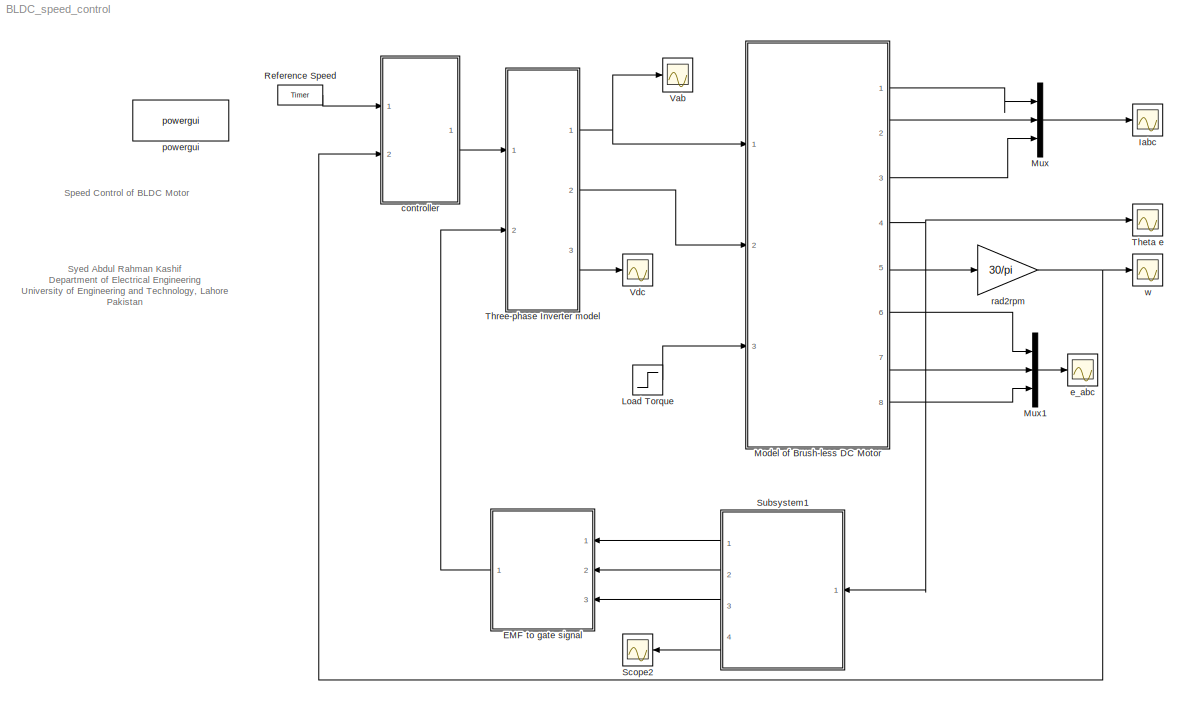
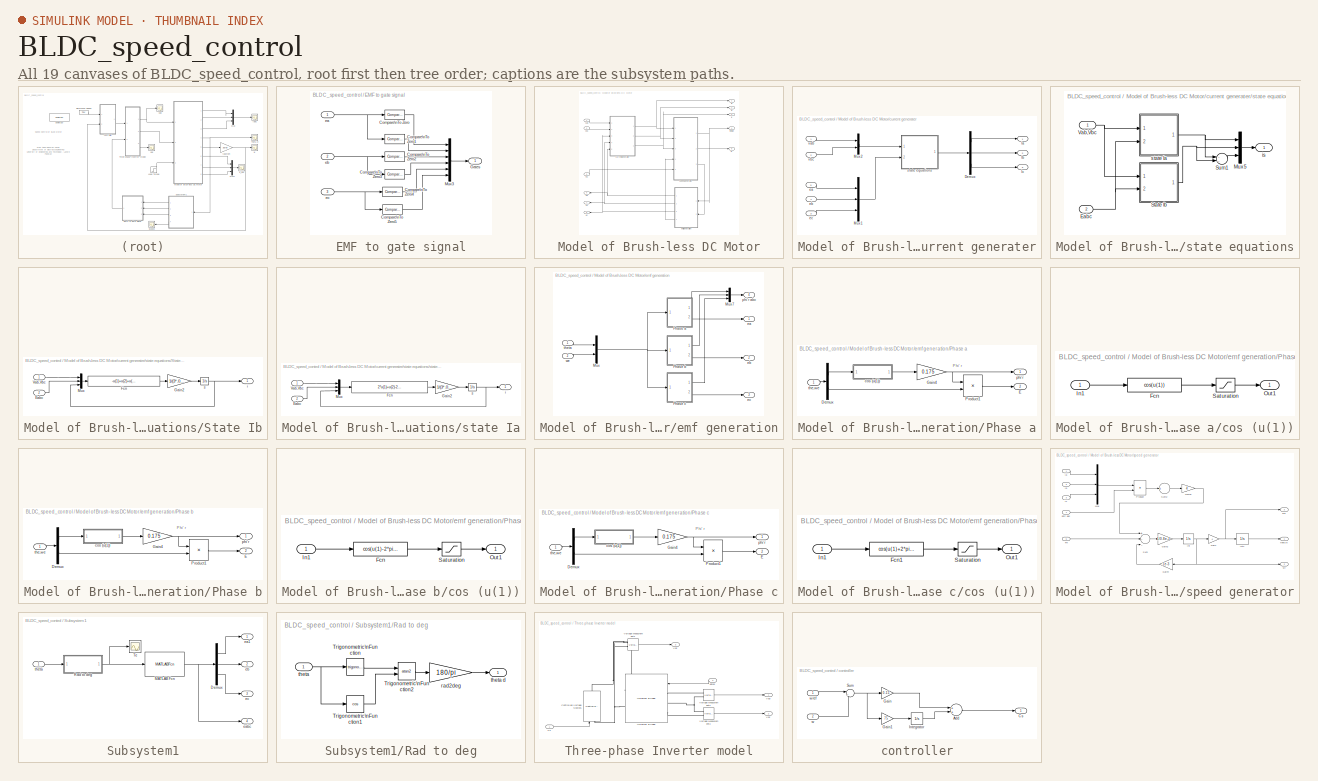
[diagram: thumbnail index - all 19 canvases of the model, root first then tree order]
MODEL BLDC_speed_control
KIND model
CONFIG InitFcn = clc;
CONFIG StopFcn = clc;
BLOCK [SubSystem] EMF to gate signal
  FunctionWithSeparateData = off
  MaskHideContents = off
  MinAlgLoopOccurrences = off
  Opaque = off
  Ports = [3, 1]
  PropExecContextOutsideSubsystem = off
  RTWSystemCode = Auto
  RequestExecContextInheritance = off
  SID = 120
BLOCK [Reference] EMF to gate signal/Compare\nTo Zero  REF=simulink/Logic and Bit\nOperations/Compare\nTo Zero
  OutDataTypeStr = boolean
  Ports = [1, 1]
  SID = 124
  SourceBlock = simulink/Logic and Bit\nOperations/Compare\nTo Zero
  SourceType = Compare To Zero
  ZeroCross = off
  relop = >
BLOCK [Reference] EMF to gate signal/Compare\nTo Zero1  REF=simulink/Logic and Bit\nOperations/Compare\nTo Zero
  OutDataTypeStr = boolean
  Ports = [1, 1]
  SID = 125
  SourceBlock = simulink/Logic and Bit\nOperations/Compare\nTo Zero
  SourceType = Compare To Zero
  ZeroCross = off
  relop = <
BLOCK [Reference] EMF to gate signal/Compare\nTo Zero2  REF=simulink/Logic and Bit\nOperations/Compare\nTo Zero
  OutDataTypeStr = boolean
  Ports = [1, 1]
  SID = 126
  SourceBlock = simulink/Logic and Bit\nOperations/Compare\nTo Zero
  SourceType = Compare To Zero
  ZeroCross = off
  relop = >
BLOCK [Reference] EMF to gate signal/Compare\nTo Zero3  REF=simulink/Logic and Bit\nOperations/Compare\nTo Zero
  OutDataTypeStr = boolean
  Ports = [1, 1]
  SID = 127
  SourceBlock = simulink/Logic and Bit\nOperations/Compare\nTo Zero
  SourceType = Compare To Zero
  ZeroCross = off
  relop = <
BLOCK [Reference] EMF to gate signal/Compare\nTo Zero4  REF=simulink/Logic and Bit\nOperations/Compare\nTo Zero
  OutDataTypeStr = boolean
  Ports = [1, 1]
  SID = 128
  SourceBlock = simulink/Logic and Bit\nOperations/Compare\nTo Zero
  SourceType = Compare To Zero
  ZeroCross = off
  relop = >
BLOCK [Reference] EMF to gate signal/Compare\nTo Zero5  REF=simulink/Logic and Bit\nOperations/Compare\nTo Zero
  OutDataTypeStr = boolean
  Ports = [1, 1]
  SID = 129
  SourceBlock = simulink/Logic and Bit\nOperations/Compare\nTo Zero
  SourceType = Compare To Zero
  ZeroCross = off
  relop = <
BLOCK [Outport] EMF to gate signal/Gates
  IconDisplay = Port number
  SID = 131
BLOCK [Mux] EMF to gate signal/Mux3
  DisplayOption = bar
  Inputs = 6
  Ports = [6, 1]
  SID = 130
BLOCK [Inport] EMF to gate signal/ea
  IconDisplay = Port number
  SID = 121
BLOCK [Inport] EMF to gate signal/eb
  IconDisplay = Port number
  Port = 2
  SID = 122
BLOCK [Inport] EMF to gate signal/ec
  IconDisplay = Port number
  Port = 3
  SID = 123
BLOCK [Scope] Iabc
  DataFormat = StructureWithTime
  Floating = off
  LimitDataPoints = off
  NumInputPorts = 1
  Ports = [1]
  SID = 1
  SampleTime = 0
  SaveName = ScopeData4
  ShowLegends = off
  YMax = 0.3
  YMin = -0.3
  ZoomMode = xonly
BLOCK [Step] Load Torque
  After = 2
  SID = 2
  SampleTime = 0
  Time = 0.2
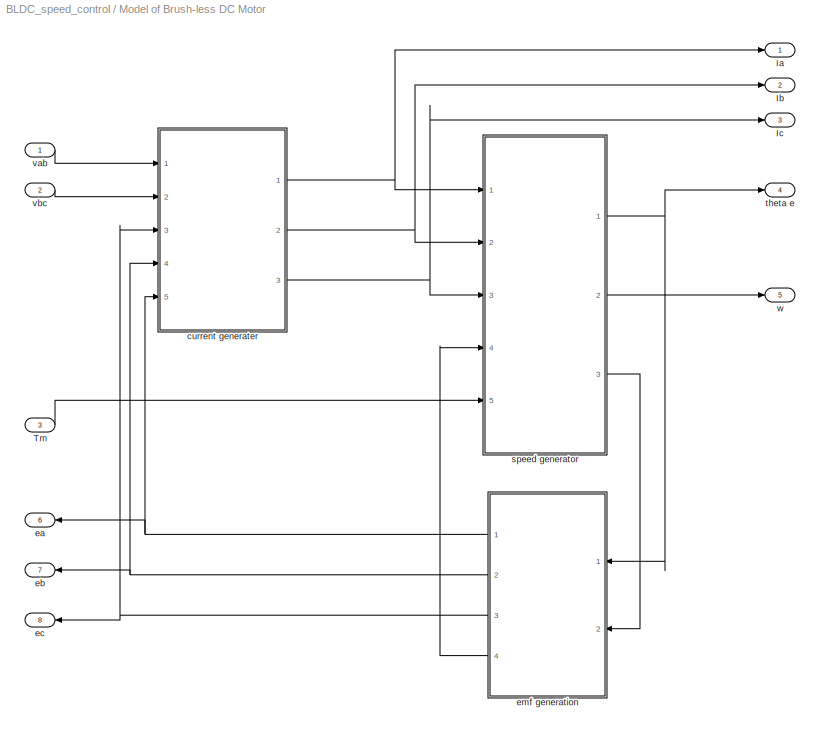
BLOCK [SubSystem] Model of Brush-less DC Motor
  FunctionWithSeparateData = off
  MaskHideContents = off
  MinAlgLoopOccurrences = off
  Opaque = off
  Ports = [3, 8]
  PropExecContextOutsideSubsystem = off
  RTWSystemCode = Auto
  RequestExecContextInheritance = off
  SID = 3
BLOCK [Outport] Model of Brush-less DC Motor/Ia
  IconDisplay = Port number
  SID = 108
BLOCK [Outport] Model of Brush-less DC Motor/Ib
  IconDisplay = Port number
  Port = 2
  SID = 109
BLOCK [Outport] Model of Brush-less DC Motor/Ic
  IconDisplay = Port number
  Port = 3
  SID = 110
BLOCK [Inport] Model of Brush-less DC Motor/Tm
  IconDisplay = Port number
  Port = 3
  SID = 6
BLOCK [SubSystem] Model of Brush-less DC Motor/current generater
  FunctionWithSeparateData = off
  MaskHideContents = off
  MinAlgLoopOccurrences = off
  Opaque = off
  Ports = [5, 3]
  PropExecContextOutsideSubsystem = off
  RTWSystemCode = Auto
  RequestExecContextInheritance = off
  SID = 7
BLOCK [Demux] Model of Brush-less DC Motor/current generater/Demux
  DisplayOption = bar
  Outputs = 3
  Ports = [1, 3]
  SID = 13
BLOCK [Outport] Model of Brush-less DC Motor/current generater/Ia
  IconDisplay = Port number
  SID = 38
BLOCK [Outport] Model of Brush-less DC Motor/current generater/Ib
  IconDisplay = Port number
  Port = 2
  SID = 39
BLOCK [Outport] Model of Brush-less DC Motor/current generater/Ic
  IconDisplay = Port number
  Port = 3
  SID = 40
BLOCK [Mux] Model of Brush-less DC Motor/current generater/Mux1
  DisplayOption = bar
  Inputs = 3
  Ports = [3, 1]
  SID = 14
BLOCK [Mux] Model of Brush-less DC Motor/current generater/Mux2
  DisplayOption = bar
  Inputs = 2
  Ports = [2, 1]
  SID = 15
BLOCK [Inport] Model of Brush-less DC Motor/current generater/ea
  IconDisplay = Port number
  Port = 5
  SID = 12
BLOCK [Inport] Model of Brush-less DC Motor/current generater/eb
  IconDisplay = Port number
  Port = 4
  SID = 11
BLOCK [Inport] Model of Brush-less DC Motor/current generater/ec
  IconDisplay = Port number
  Port = 3
  SID = 10
BLOCK [SubSystem] Model of Brush-less DC Motor/current generater/state equations
  FunctionWithSeparateData = off
  MaskHideContents = off
  MinAlgLoopOccurrences = off
  Opaque = off
  Ports = [2, 1]
  PropExecContextOutsideSubsystem = off
  RTWSystemCode = Auto
  RequestExecContextInheritance = off
  SID = 16
BLOCK [Inport] Model of Brush-less DC Motor/current generater/state equations/Eabc
  IconDisplay = Port number
  Port = 2
  SID = 18
BLOCK [Mux] Model of Brush-less DC Motor/current generater/state equations/Mux5
  DisplayOption = bar
  Inputs = 3
  Ports = [3, 1]
  SID = 19
BLOCK [SubSystem] Model of Brush-less DC Motor/current generater/state equations/State Ib
  FunctionWithSeparateData = off
  MaskHideContents = off
  MinAlgLoopOccurrences = off
  Opaque = off
  Ports = [2, 1]
  PropExecContextOutsideSubsystem = off
  RTWSystemCode = Auto
  RequestExecContextInheritance = off
  SID = 20
BLOCK [Inport] Model of Brush-less DC Motor/current generater/state equations/State Ib/Eabc
  IconDisplay = Port number
  Port = 2
  SID = 22
BLOCK [Fcn] Model of Brush-less DC Motor/current generater/state equations/State Ib/Fcn
  Expr = -u(1)+u(2)+u(3)-2*u(4)+u(5)-3*2.8750*u(6)
  SID = 23
BLOCK [Gain] Model of Brush-less DC Motor/current generater/state equations/State Ib/Gain2
  Gain = 1/(3*.0085)
  SID = 24
BLOCK [Mux] Model of Brush-less DC Motor/current generater/state equations/State Ib/Mux
  DisplayOption = bar
  Inputs = 3
  Ports = [3, 1]
  SID = 25
BLOCK [Inport] Model of Brush-less DC Motor/current generater/state equations/State Ib/Vab,Vbc
  IconDisplay = Port number
  SID = 21
BLOCK [Outport] Model of Brush-less DC Motor/current generater/state equations/State Ib/i
  IconDisplay = Port number
  SID = 27
BLOCK [Integrator] Model of Brush-less DC Motor/current generater/state equations/State Ib/s 
  Ports = [1, 1]
  SID = 26
BLOCK [Sum] Model of Brush-less DC Motor/current generater/state equations/Sum1
  InputSameDT = off
  Inputs = --
  OutDataTypeStr = Inherit: Inherit via internal rule
  Ports = [2, 1]
  SID = 28
BLOCK [Inport] Model of Brush-less DC Motor/current generater/state equations/Vab,Vbc
  IconDisplay = Port number
  SID = 17
BLOCK [Outport] Model of Brush-less DC Motor/current generater/state equations/is
  IconDisplay = Port number
  SID = 37
BLOCK [SubSystem] Model of Brush-less DC Motor/current generater/state equations/state Ia
  FunctionWithSeparateData = off
  MaskHideContents = off
  MinAlgLoopOccurrences = off
  Opaque = off
  Ports = [2, 1]
  PropExecContextOutsideSubsystem = off
  RTWSystemCode = Auto
  RequestExecContextInheritance = off
  SID = 29
BLOCK [Inport] Model of Brush-less DC Motor/current generater/state equations/state Ia/Eabc
  IconDisplay = Port number
  Port = 2
  SID = 31
BLOCK [Fcn] Model of Brush-less DC Motor/current generater/state equations/state Ia/Fcn
  Expr = 2*u(1)+u(2)-2*u(3)+u(4)+u(5)-3*2.8750*u(6)
  SID = 32
BLOCK [Gain] Model of Brush-less DC Motor/current generater/state equations/state Ia/Gain2
  Gain = 1/(3*.0085)
  SID = 33
BLOCK [Mux] Model of Brush-less DC Motor/current generater/state equations/state Ia/Mux
  DisplayOption = bar
  Inputs = 3
  Ports = [3, 1]
  SID = 34
BLOCK [Inport] Model of Brush-less DC Motor/current generater/state equations/state Ia/Vab,Vbc
  IconDisplay = Port number
  SID = 30
BLOCK [Outport] Model of Brush-less DC Motor/current generater/state equations/state Ia/i
  IconDisplay = Port number
  SID = 36
BLOCK [Integrator] Model of Brush-less DC Motor/current generater/state equations/state Ia/s 
  Ports = [1, 1]
  SID = 35
BLOCK [Inport] Model of Brush-less DC Motor/current generater/vab
  IconDisplay = Port number
  SID = 8
BLOCK [Inport] Model of Brush-less DC Motor/current generater/vbc
  IconDisplay = Port number
  Port = 2
  SID = 9
BLOCK [Outport] Model of Brush-less DC Motor/ea
  IconDisplay = Port number
  Port = 6
  SID = 113
BLOCK [Outport] Model of Brush-less DC Motor/eb
  IconDisplay = Port number
  Port = 7
  SID = 114
BLOCK [Outport] Model of Brush-less DC Motor/ec
  IconDisplay = Port number
  Port = 8
  SID = 115
BLOCK [SubSystem] Model of Brush-less DC Motor/emf generation
  FunctionWithSeparateData = off
  MaskHideContents = off
  MinAlgLoopOccurrences = off
  Opaque = off
  Ports = [2, 4]
  PropExecContextOutsideSubsystem = off
  RTWSystemCode = Auto
  RequestExecContextInheritance = off
  SID = 41
BLOCK [Mux] Model of Brush-less DC Motor/emf generation/Mux
  DisplayOption = bar
  Inputs = 2
  Ports = [2, 1]
  SID = 44
BLOCK [Mux] Model of Brush-less DC Motor/emf generation/Mux7
  DisplayOption = bar
  Inputs = 3
  Ports = [3, 1]
  SID = 45
BLOCK [SubSystem] Model of Brush-less DC Motor/emf generation/Phase a
  FunctionWithSeparateData = off
  MaskHideContents = off
  MinAlgLoopOccurrences = off
  Opaque = off
  Ports = [1, 2]
  PropExecContextOutsideSubsystem = off
  RTWSystemCode = Auto
  RequestExecContextInheritance = off
  SID = 46
BLOCK [Demux] Model of Brush-less DC Motor/emf generation/Phase a/Demux
  Outputs = 2
  Ports = [1, 2]
  SID = 48
BLOCK [Outport] Model of Brush-less DC Motor/emf generation/Phase a/E
  IconDisplay = Port number
  Port = 2
  SID = 57
BLOCK [Gain] Model of Brush-less DC Motor/emf generation/Phase a/Gain4
  Gain = 0.175
  SID = 49
BLOCK [Product] Model of Brush-less DC Motor/emf generation/Phase a/Product1
  InputSameDT = off
  Ports = [2, 1]
  RndMeth = Floor
  SID = 50
BLOCK [SubSystem] Model of Brush-less DC Motor/emf generation/Phase a/cos (u(1))
  FunctionWithSeparateData = off
  MaskHideContents = off
  MinAlgLoopOccurrences = off
  Opaque = off
  Ports = [1, 1]
  PropExecContextOutsideSubsystem = off
  RTWSystemCode = Auto
  RequestExecContextInheritance = off
  SID = 51
BLOCK [Fcn] Model of Brush-less DC Motor/emf generation/Phase a/cos (u(1))/Fcn
  Expr = cos(u(1))
  SID = 53
BLOCK [Inport] Model of Brush-less DC Motor/emf generation/Phase a/cos (u(1))/In1
  IconDisplay = Port number
  SID = 52
BLOCK [Outport] Model of Brush-less DC Motor/emf generation/Phase a/cos (u(1))/Out1
  IconDisplay = Port number
  SID = 55
BLOCK [Saturate] Model of Brush-less DC Motor/emf generation/Phase a/cos (u(1))/Saturation
  InputPortMap = u0
  LowerLimit = -0.8
  Ports = [1, 1]
  SID = 54
  UpperLimit = 0.8
BLOCK [Outport] Model of Brush-less DC Motor/emf generation/Phase a/phi'r
  IconDisplay = Port number
  SID = 56
BLOCK [Inport] Model of Brush-less DC Motor/emf generation/Phase a/the,we
  IconDisplay = Port number
  SID = 47
BLOCK [SubSystem] Model of Brush-less DC Motor/emf generation/Phase b
  FunctionWithSeparateData = off
  MaskHideContents = off
  MinAlgLoopOccurrences = off
  Opaque = off
  Ports = [1, 2]
  PropExecContextOutsideSubsystem = off
  RTWSystemCode = Auto
  RequestExecContextInheritance = off
  SID = 59
BLOCK [Demux] Model of Brush-less DC Motor/emf generation/Phase b/Demux
  Outputs = 2
  Ports = [1, 2]
  SID = 61
BLOCK [Outport] Model of Brush-less DC Motor/emf generation/Phase b/E
  IconDisplay = Port number
  Port = 2
  SID = 70
BLOCK [Gain] Model of Brush-less DC Motor/emf generation/Phase b/Gain4
  Gain = 0.175
  SID = 62
BLOCK [Product] Model of Brush-less DC Motor/emf generation/Phase b/Product1
  InputSameDT = off
  Ports = [2, 1]
  RndMeth = Floor
  SID = 63
BLOCK [SubSystem] Model of Brush-less DC Motor/emf generation/Phase b/cos (u(1))
  FunctionWithSeparateData = off
  MaskHideContents = off
  MinAlgLoopOccurrences = off
  Opaque = off
  Ports = [1, 1]
  PropExecContextOutsideSubsystem = off
  RTWSystemCode = Auto
  RequestExecContextInheritance = off
  SID = 64
BLOCK [Fcn] Model of Brush-less DC Motor/emf generation/Phase b/cos (u(1))/Fcn
  Expr = cos(u(1)-2*pi/3)
  SID = 66
BLOCK [Inport] Model of Brush-less DC Motor/emf generation/Phase b/cos (u(1))/In1
  IconDisplay = Port number
  SID = 65
BLOCK [Outport] Model of Brush-less DC Motor/emf generation/Phase b/cos (u(1))/Out1
  IconDisplay = Port number
  SID = 68
BLOCK [Saturate] Model of Brush-less DC Motor/emf generation/Phase b/cos (u(1))/Saturation
  InputPortMap = u0
  LowerLimit = -0.8
  Ports = [1, 1]
  SID = 67
  UpperLimit = 0.8
BLOCK [Outport] Model of Brush-less DC Motor/emf generation/Phase b/phi'r
  IconDisplay = Port number
  SID = 69
BLOCK [Inport] Model of Brush-less DC Motor/emf generation/Phase b/the,we
  IconDisplay = Port number
  SID = 60
BLOCK [SubSystem] Model of Brush-less DC Motor/emf generation/Phase c
  FunctionWithSeparateData = off
  MaskHideContents = off
  MinAlgLoopOccurrences = off
  Opaque = off
  Ports = [1, 2]
  PropExecContextOutsideSubsystem = off
  RTWSystemCode = Auto
  RequestExecContextInheritance = off
  SID = 72
BLOCK [Demux] Model of Brush-less DC Motor/emf generation/Phase c/Demux
  Outputs = 2
  Ports = [1, 2]
  SID = 74
BLOCK [Outport] Model of Brush-less DC Motor/emf generation/Phase c/E
  IconDisplay = Port number
  Port = 2
  SID = 83
BLOCK [Gain] Model of Brush-less DC Motor/emf generation/Phase c/Gain4
  Gain = 0.175
  SID = 75
BLOCK [Product] Model of Brush-less DC Motor/emf generation/Phase c/Product1
  InputSameDT = off
  Ports = [2, 1]
  RndMeth = Floor
  SID = 76
BLOCK [SubSystem] Model of Brush-less DC Motor/emf generation/Phase c/cos (u(1))
  FunctionWithSeparateData = off
  MaskHideContents = off
  MinAlgLoopOccurrences = off
  Opaque = off
  Ports = [1, 1]
  PropExecContextOutsideSubsystem = off
  RTWSystemCode = Auto
  RequestExecContextInheritance = off
  SID = 77
BLOCK [Fcn] Model of Brush-less DC Motor/emf generation/Phase c/cos (u(1))/Fcn1
  Expr = cos(u(1)+2*pi/3)
  SID = 79
BLOCK [Inport] Model of Brush-less DC Motor/emf generation/Phase c/cos (u(1))/In1
  IconDisplay = Port number
  SID = 78
BLOCK [Outport] Model of Brush-less DC Motor/emf generation/Phase c/cos (u(1))/Out1
  IconDisplay = Port number
  SID = 81
BLOCK [Saturate] Model of Brush-less DC Motor/emf generation/Phase c/cos (u(1))/Saturation
  InputPortMap = u0
  LowerLimit = -0.8
  Ports = [1, 1]
  SID = 80
  UpperLimit = 0.8
BLOCK [Outport] Model of Brush-less DC Motor/emf generation/Phase c/phi'r
  IconDisplay = Port number
  SID = 82
BLOCK [Inport] Model of Brush-less DC Motor/emf generation/Phase c/the,we
  IconDisplay = Port number
  SID = 73
BLOCK [Outport] Model of Brush-less DC Motor/emf generation/ea
  IconDisplay = Port number
  SID = 85
BLOCK [Outport] Model of Brush-less DC Motor/emf generation/eb
  IconDisplay = Port number
  Port = 2
  SID = 86
BLOCK [Outport] Model of Brush-less DC Motor/emf generation/ec
  IconDisplay = Port number
  Port = 3
  SID = 87
BLOCK [Outport] Model of Brush-less DC Motor/emf generation/phi'r abc
  IconDisplay = Port number
  Port = 4
  SID = 88
BLOCK [Inport] Model of Brush-less DC Motor/emf generation/theta
  IconDisplay = Port number
  SID = 42
BLOCK [Inport] Model of Brush-less DC Motor/emf generation/we
  IconDisplay = Port number
  Port = 2
  SID = 43
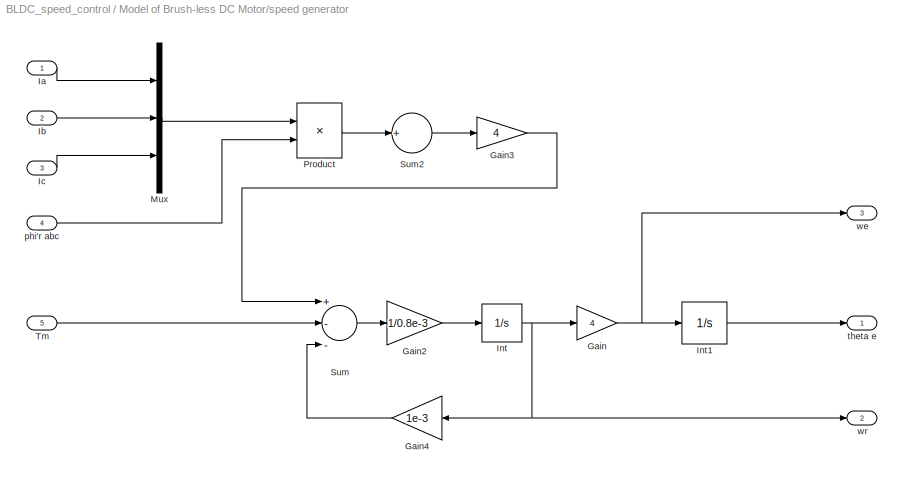
BLOCK [SubSystem] Model of Brush-less DC Motor/speed generator
  FunctionWithSeparateData = off
  MaskHideContents = off
  MinAlgLoopOccurrences = off
  Opaque = off
  Ports = [5, 3]
  PropExecContextOutsideSubsystem = off
  RTWSystemCode = Auto
  RequestExecContextInheritance = off
  SID = 89
BLOCK [Gain] Model of Brush-less DC Motor/speed generator/Gain
  Gain = 4
  SID = 95
BLOCK [Gain] Model of Brush-less DC Motor/speed generator/Gain2
  Gain = 1/0.8e-3
  SID = 96
BLOCK [Gain] Model of Brush-less DC Motor/speed generator/Gain3
  Gain = 4
  SID = 97
BLOCK [Gain] Model of Brush-less DC Motor/speed generator/Gain4
  Gain = 1e-3
  SID = 98
BLOCK [Inport] Model of Brush-less DC Motor/speed generator/Ia
  IconDisplay = Port number
  SID = 90
BLOCK [Inport] Model of Brush-less DC Motor/speed generator/Ib
  IconDisplay = Port number
  Port = 2
  SID = 91
BLOCK [Inport] Model of Brush-less DC Motor/speed generator/Ic
  IconDisplay = Port number
  Port = 3
  SID = 92
BLOCK [Integrator] Model of Brush-less DC Motor/speed generator/Int
  Ports = [1, 1]
  SID = 99
BLOCK [Integrator] Model of Brush-less DC Motor/speed generator/Int1
  Ports = [1, 1]
  SID = 100
BLOCK [Mux] Model of Brush-less DC Motor/speed generator/Mux
  DisplayOption = bar
  Inputs = 3
  Ports = [3, 1]
  SID = 101
BLOCK [Product] Model of Brush-less DC Motor/speed generator/Product
  InputSameDT = off
  Ports = [2, 1]
  RndMeth = Floor
  SID = 102
BLOCK [Sum] Model of Brush-less DC Motor/speed generator/Sum
  Inputs = +--
  Ports = [3, 1]
  SID = 103
BLOCK [Sum] Model of Brush-less DC Motor/speed generator/Sum2
  IconShape = round
  InputSameDT = off
  Inputs = +
  OutDataTypeStr = Inherit: Inherit via internal rule
  Ports = [1, 1]
  SID = 104
BLOCK [Inport] Model of Brush-less DC Motor/speed generator/Tm
  IconDisplay = Port number
  Port = 5
  SID = 94
BLOCK [Inport] Model of Brush-less DC Motor/speed generator/phi'r abc
  IconDisplay = Port number
  Port = 4
  SID = 93
BLOCK [Outport] Model of Brush-less DC Motor/speed generator/theta e
  IconDisplay = Port number
  SID = 105
BLOCK [Outport] Model of Brush-less DC Motor/speed generator/we
  IconDisplay = Port number
  Port = 3
  SID = 107
BLOCK [Outport] Model of Brush-less DC Motor/speed generator/wr
  IconDisplay = Port number
  Port = 2
  SID = 106
BLOCK [Outport] Model of Brush-less DC Motor/theta e
  IconDisplay = Port number
  Port = 4
  SID = 111
BLOCK [Inport] Model of Brush-less DC Motor/vab
  IconDisplay = Port number
  SID = 4
BLOCK [Inport] Model of Brush-less DC Motor/vbc
  IconDisplay = Port number
  Port = 2
  SID = 5
BLOCK [Outport] Model of Brush-less DC Motor/w
  IconDisplay = Port number
  Port = 5
  SID = 112
BLOCK [Mux] Mux
  DisplayOption = bar
  Inputs = 3
  Ports = [3, 1]
  SID = 116
BLOCK [Mux] Mux1
  DisplayOption = bar
  Inputs = 3
  Ports = [3, 1]
  SID = 117
BLOCK [Reference] Reference Speed  REF=powerlib_extras/Control \nBlocks/Timer
  Ports = [0, 1]
  SID = 119
  SourceBlock = powerlib_extras/Control \nBlocks/Timer
  SourceType = Timer
  e = [2000 1000]
  t = [0 0.5]
BLOCK [Scope] Scope2
  DataFormat = StructureWithTime
  Floating = off
  NumInputPorts = 1
  Ports = [1]
  SID = 118
  SampleTime = 0
  SaveName = ScopeData2
  ShowLegends = off
  TimeRange = 0.2
  YMax = 2
  YMin = -2
  ZoomMode = xonly
BLOCK [SubSystem] Subsystem1
  FunctionWithSeparateData = off
  MaskHideContents = off
  MinAlgLoopOccurrences = off
  Opaque = off
  Ports = [1, 4]
  PropExecContextOutsideSubsystem = off
  RTWSystemCode = Auto
  RequestExecContextInheritance = off
  SID = 132
BLOCK [Demux] Subsystem1/Demux
  DisplayOption = bar
  Outputs = 3
  Ports = [1, 3]
  SID = 134
BLOCK [MATLABFcn] Subsystem1/MATLAB Fcn
  MATLABFcn = emfg(u)
  OutputDimensions = 3
  Ports = [1, 1]
  SID = 135
BLOCK [SubSystem] Subsystem1/Rad to deg
  FunctionWithSeparateData = off
  MaskHideContents = off
  MinAlgLoopOccurrences = off
  Opaque = off
  Ports = [1, 1]
  PropExecContextOutsideSubsystem = off
  RTWSystemCode = Auto
  RequestExecContextInheritance = off
  SID = 136
BLOCK [Trigonometry] Subsystem1/Rad to deg/Trigonometric\nFunction
  Ports = [1, 1]
  SID = 138
BLOCK [Trigonometry] Subsystem1/Rad to deg/Trigonometric\nFunction1
  Operator = cos
  Ports = [1, 1]
  SID = 139
BLOCK [Trigonometry] Subsystem1/Rad to deg/Trigonometric\nFunction2
  Operator = atan2
  Ports = [2, 1]
  SID = 140
BLOCK [Gain] Subsystem1/Rad to deg/rad2deg
  Gain = 180/pi
  SID = 141
BLOCK [Inport] Subsystem1/Rad to deg/theta
  IconDisplay = Port number
  SID = 137
BLOCK [Outport] Subsystem1/Rad to deg/theta d
  IconDisplay = Port number
  SID = 142
BLOCK [Scope] Subsystem1/Te
  DataFormat = StructureWithTime
  Floating = off
  NumInputPorts = 1
  Ports = [1]
  SID = 143
  SampleTime = 0
  SaveName = ScopeData12
  ShowLegends = off
  TimeRange = 0.0001172995862488424
  YMax = 200
  YMin = -200
  ZoomMode = xonly
BLOCK [Outport] Subsystem1/ea1
  IconDisplay = Port number
  SID = 144
BLOCK [Outport] Subsystem1/eabc
  IconDisplay = Port number
  Port = 4
  SID = 147
BLOCK [Outport] Subsystem1/eb
  IconDisplay = Port number
  Port = 2
  SID = 145
BLOCK [Outport] Subsystem1/ec
  IconDisplay = Port number
  Port = 3
  SID = 146
BLOCK [Inport] Subsystem1/theta
  IconDisplay = Port number
  SID = 133
BLOCK [Scope] Theta e
  DataFormat = StructureWithTime
  Floating = off
  NumInputPorts = 1
  Ports = [1]
  SID = 148
  SampleTime = 0
  ShowLegends = off
  YMax = 1.00067
  YMin = 1.00059
BLOCK [SubSystem] Three-phase Inverter model
  FunctionWithSeparateData = off
  MaskHideContents = off
  MinAlgLoopOccurrences = off
  Opaque = off
  Ports = [2, 3]
  PropExecContextOutsideSubsystem = off
  RTWSystemCode = Auto
  RequestExecContextInheritance = off
  SID = 163
BLOCK [Reference] Three-phase Inverter model/Controlled Voltage Source1  REF=powerlib/Electrical\nSources/Controlled Voltage Source
  Amplitude = 500
  Frequency = 0
  Initialize = on
  Measurements = None
  Phase = 0
  Ports = [1, 0, 0, 0, 0, 1, 1]
  SID = 166
  SourceBlock = powerlib/Electrical\nSources/Controlled Voltage Source
  SourceType = Controlled Voltage Source
  Source_Type = AC
BLOCK [Inport] Three-phase Inverter model/Cs
  IconDisplay = Port number
  SID = 164
BLOCK [Reference] Three-phase Inverter model/Universal Bridge  REF=powerlib/Power\nElectronics/Universal Bridge
  Arms = 3
  Device = MOSFET / Diodes
  ForwardVoltage = 0
  ForwardVoltages = [  0  0  ]
  GTOparameters = [ 10e-6 , 20e-6 ]
  IGBTparameters = [ 1e-6 , 2e-6 ]
  Lon = 0
  Measurements = None
  Measurements_2 = None
  Ports = [1, 0, 0, 0, 0, 3, 2]
  Ron = 1e-3
  SID = 167
  SnubberCapacitance = 1e-6
  SnubberResistance = 5000
  SourceBlock = powerlib/Power\nElectronics/Universal Bridge
  SourceType = Universal Bridge
  converterType = Rectifier
BLOCK [Outport] Three-phase Inverter model/Vab
  IconDisplay = Port number
  SID = 171
BLOCK [Outport] Three-phase Inverter model/Vbc
  IconDisplay = Port number
  Port = 2
  SID = 172
BLOCK [Outport] Three-phase Inverter model/Vdc
  IconDisplay = Port number
  Port = 3
  SID = 173
BLOCK [Reference] Three-phase Inverter model/Voltage Measurement1  REF=powerlib/Measurements/Voltage Measurement
  OutputType = Complex
  PSBequivalent = 0
  PhasorSimulation = off
  Ports = [0, 1, 0, 0, 0, 2]
  SID = 168
  SourceBlock = powerlib/Measurements/Voltage Measurement
  SourceType = Voltage Measurement
BLOCK [Reference] Three-phase Inverter model/Voltage Measurement2  REF=powerlib/Measurements/Voltage Measurement
  OutputType = Complex
  PSBequivalent = 0
  PhasorSimulation = off
  Ports = [0, 1, 0, 0, 0, 2]
  SID = 169
  SourceBlock = powerlib/Measurements/Voltage Measurement
  SourceType = Voltage Measurement
BLOCK [Reference] Three-phase Inverter model/Voltage Measurement3  REF=powerlib/Measurements/Voltage Measurement
  OutputType = Complex
  PSBequivalent = 0
  PhasorSimulation = off
  Ports = [0, 1, 0, 0, 0, 2]
  SID = 170
  SourceBlock = powerlib/Measurements/Voltage Measurement
  SourceType = Voltage Measurement
BLOCK [Inport] Three-phase Inverter model/gates
  IconDisplay = Port number
  Port = 2
  SID = 165
BLOCK [Scope] Vab
  DataFormat = StructureWithTime
  Floating = off
  LimitDataPoints = off
  NumInputPorts = 1
  Ports = [1]
  SID = 149
  SampleTime = 0
  SaveName = ScopeData3
  ShowLegends = off
  TimeRange = 0.2
  YMax = 10000
  YMin = -10000
  ZoomMode = xonly
BLOCK [Scope] Vdc
  DataFormat = StructureWithTime
  Floating = off
  NumInputPorts = 1
  Ports = [1]
  SID = 150
  SampleTime = 0
  SaveName = ScopeData5
  ShowLegends = off
BLOCK [SubSystem] controller
  FunctionWithSeparateData = off
  MaskHideContents = off
  MinAlgLoopOccurrences = off
  Opaque = off
  Ports = [2, 1]
  PropExecContextOutsideSubsystem = off
  RTWSystemCode = Auto
  RequestExecContextInheritance = off
  SID = 151
BLOCK [Sum] controller/Add
  InputSameDT = off
  OutDataTypeStr = Inherit: Inherit via internal rule
  Ports = [2, 1]
  SID = 154
  SaturateOnIntegerOverflow = off
BLOCK [Outport] controller/Cs
  IconDisplay = Port number
  SID = 159
BLOCK [Gain] controller/Gain
  Gain = 0.15
  OutDataTypeStr = Inherit: Inherit via internal rule
  ParamDataTypeStr = Inherit: Inherit via internal rule
  SID = 155
  SaturateOnIntegerOverflow = off
BLOCK [Gain] controller/Gain1
  Gain = 75
  OutDataTypeStr = Inherit: Inherit via internal rule
  ParamDataTypeStr = Inherit: Inherit via internal rule
  SID = 156
  SaturateOnIntegerOverflow = off
BLOCK [Integrator] controller/Integrator
  Ports = [1, 1]
  SID = 157
BLOCK [Sum] controller/Sum
  IconShape = round
  InputSameDT = off
  Inputs = |+-
  OutDataTypeStr = Inherit: Inherit via internal rule
  Ports = [2, 1]
  SID = 158
  SaturateOnIntegerOverflow = off
BLOCK [Inport] controller/w
  IconDisplay = Port number
  Port = 2
  SID = 153
BLOCK [Inport] controller/wref
  IconDisplay = Port number
  SID = 152
BLOCK [Scope] e_abc
  DataFormat = StructureWithTime
  Floating = off
  LimitDataPoints = off
  NumInputPorts = 1
  Ports = [1]
  SID = 160
  SampleTime = 0
  SaveName = ScopeData6
  ShowLegends = off
  TimeRange = 0.0001172995862488424
  YMax = 150
  YMin = -150
  ZoomMode = xonly
BLOCK [Reference] powergui  REF=powerlib/powergui
  DisableRonSwitches = off
  DisableSnubberDevices = off
  DisableVfSwitches = off
  DisplayEquations = off
  DisplayStyle = 1
  EnableUseOfTLC = off
  ErrMax = 1e-4
  Frange = [0:2:500]
  FreqAxis = off
  FunctionMessages = off
  HookPort = off
  Interpol = off
  Iterations = 50
  MaxFrequency = 1000
  Pbase = 100e6
  Ports = []
  Priority = 2
  ResistiveCurrentMeasurement = off
  RestoreLinks = warning
  RmsSteady = 1
  SID = 161
  SPID = off
  SampleTime = Ts
  ShowGrid = off
  SolverType = Tustin
  SourceBlock = powerlib/powergui
  SourceType = PSB option menu block
  StartTime = 0.0
  SwTol = 0
  Ts = 0
  UnitsV = kV
  UnitsW = MW
  UserData = DataTag0
  UserDataPersistent = on
  Xlog = on
  Ylog = off
  ZoomFFT = on
  cycles = 1
  display = off
  echomessages = off
  frequency = 60
  frequencyindice = 0
  frequencyindicesteady = 1
  fundamental = 60
  methode = off
  save = off
  variable = ZData
  x0status = blocks
BLOCK [Gain] rad2rpm
  Gain = 30/pi
  OutDataTypeStr = Inherit: Inherit via internal rule
  ParamDataTypeStr = Inherit: Inherit via internal rule
  SID = 162
  SaturateOnIntegerOverflow = off
BLOCK [Scope] w
  DataFormat = StructureWithTime
  Floating = off
  LimitDataPoints = off
  NumInputPorts = 1
  Ports = [1]
  SID = 174
  SampleTime = 0
  SaveName = ScopeData1
  ShowLegends = off
  TimeRange = 0.4
  YMax = 2500
  YMin = 0
  ZoomMode = xonly
ANNOTATION (root): Speed Control of BLDC Motor
ANNOTATION (root): Syed Abdul Rahman Kashif\nDepartment of Electrical Engineering\nUniversity of Engineering and Technology, Lahore\nPakistan
ANNOTATION Model of Brush-less DC Motor/emf generation/Phase a: Phi' r
ANNOTATION Model of Brush-less DC Motor/emf generation/Phase b: Phi' r
ANNOTATION Model of Brush-less DC Motor/emf generation/Phase c: Phi' r
LINE EMF to gate signal/Compare\nTo Zero1:1 -> EMF to gate signal/Mux3:2
LINE EMF to gate signal/Compare\nTo Zero2:1 -> EMF to gate signal/Mux3:3
LINE EMF to gate signal/Compare\nTo Zero3:1 -> EMF to gate signal/Mux3:4
LINE EMF to gate signal/Compare\nTo Zero4:1 -> EMF to gate signal/Mux3:5
LINE EMF to gate signal/Compare\nTo Zero5:1 -> EMF to gate signal/Mux3:6
LINE EMF to gate signal/Compare\nTo Zero:1 -> EMF to gate signal/Mux3:1
LINE EMF to gate signal/Mux3:1 -> EMF to gate signal/Gates:1
NET EMF to gate signal/ea:1 -> EMF to gate signal/Compare\nTo Zero1:1, EMF to gate signal/Compare\nTo Zero:1
NET EMF to gate signal/eb:1 -> EMF to gate signal/Compare\nTo Zero2:1, EMF to gate signal/Compare\nTo Zero3:1
NET EMF to gate signal/ec:1 -> EMF to gate signal/Compare\nTo Zero4:1, EMF to gate signal/Compare\nTo Zero5:1
LINE EMF to gate signal:1 -> Three-phase Inverter model:2
LINE Load Torque:1 -> Model of Brush-less DC Motor:3
LINE Model of Brush-less DC Motor/Tm:1 -> Model of Brush-less DC Motor/speed generator:5
LINE Model of Brush-less DC Motor/current generater/Demux:1 -> Model of Brush-less DC Motor/current generater/Ia:1
LINE Model of Brush-less DC Motor/current generater/Demux:2 -> Model of Brush-less DC Motor/current generater/Ib:1
LINE Model of Brush-less DC Motor/current generater/Demux:3 -> Model of Brush-less DC Motor/current generater/Ic:1
LINE Model of Brush-less DC Motor/current generater/Mux1:1 -> Model of Brush-less DC Motor/current generater/state equations:2
LINE Model of Brush-less DC Motor/current generater/Mux2:1 -> Model of Brush-less DC Motor/current generater/state equations:1
LINE Model of Brush-less DC Motor/current generater/ea:1 -> Model of Brush-less DC Motor/current generater/Mux1:1
LINE Model of Brush-less DC Motor/current generater/eb:1 -> Model of Brush-less DC Motor/current generater/Mux1:2
LINE Model of Brush-less DC Motor/current generater/ec:1 -> Model of Brush-less DC Motor/current generater/Mux1:3
NET Model of Brush-less DC Motor/current generater/state equations/Eabc:1 -> Model of Brush-less DC Motor/current generater/state equations/State Ib:2, Model of Brush-less DC Motor/current generater/state equations/state Ia:2
LINE Model of Brush-less DC Motor/current generater/state equations/Mux5:1 -> Model of Brush-less DC Motor/current generater/state equations/is:1
LINE Model of Brush-less DC Motor/current generater/state equations/State Ib/Eabc:1 -> Model of Brush-less DC Motor/current generater/state equations/State Ib/Mux:2
LINE Model of Brush-less DC Motor/current generater/state equations/State Ib/Fcn:1 -> Model of Brush-less DC Motor/current generater/state equations/State Ib/Gain2:1
LINE Model of Brush-less DC Motor/current generater/state equations/State Ib/Gain2:1 -> Model of Brush-less DC Motor/current generater/state equations/State Ib/s :1
LINE Model of Brush-less DC Motor/current generater/state equations/State Ib/Mux:1 -> Model of Brush-less DC Motor/current generater/state equations/State Ib/Fcn:1
LINE Model of Brush-less DC Motor/current generater/state equations/State Ib/Vab,Vbc:1 -> Model of Brush-less DC Motor/current generater/state equations/State Ib/Mux:1
NET Model of Brush-less DC Motor/current generater/state equations/State Ib/s :1 -> Model of Brush-less DC Motor/current generater/state equations/State Ib/Mux:3, Model of Brush-less DC Motor/current generater/state equations/State Ib/i:1
NET Model of Brush-less DC Motor/current generater/state equations/State Ib:1 -> Model of Brush-less DC Motor/current generater/state equations/Mux5:2, Model of Brush-less DC Motor/current generater/state equations/Sum1:2
LINE Model of Brush-less DC Motor/current generater/state equations/Sum1:1 -> Model of Brush-less DC Motor/current generater/state equations/Mux5:3
NET Model of Brush-less DC Motor/current generater/state equations/Vab,Vbc:1 -> Model of Brush-less DC Motor/current generater/state equations/State Ib:1, Model of Brush-less DC Motor/current generater/state equations/state Ia:1
LINE Model of Brush-less DC Motor/current generater/state equations/state Ia/Eabc:1 -> Model of Brush-less DC Motor/current generater/state equations/state Ia/Mux:2
LINE Model of Brush-less DC Motor/current generater/state equations/state Ia/Fcn:1 -> Model of Brush-less DC Motor/current generater/state equations/state Ia/Gain2:1
LINE Model of Brush-less DC Motor/current generater/state equations/state Ia/Gain2:1 -> Model of Brush-less DC Motor/current generater/state equations/state Ia/s :1
LINE Model of Brush-less DC Motor/current generater/state equations/state Ia/Mux:1 -> Model of Brush-less DC Motor/current generater/state equations/state Ia/Fcn:1
LINE Model of Brush-less DC Motor/current generater/state equations/state Ia/Vab,Vbc:1 -> Model of Brush-less DC Motor/current generater/state equations/state Ia/Mux:1
NET Model of Brush-less DC Motor/current generater/state equations/state Ia/s :1 -> Model of Brush-less DC Motor/current generater/state equations/state Ia/Mux:3, Model of Brush-less DC Motor/current generater/state equations/state Ia/i:1
NET Model of Brush-less DC Motor/current generater/state equations/state Ia:1 -> Model of Brush-less DC Motor/current generater/state equations/Mux5:1, Model of Brush-less DC Motor/current generater/state equations/Sum1:1
LINE Model of Brush-less DC Motor/current generater/state equations:1 -> Model of Brush-less DC Motor/current generater/Demux:1
LINE Model of Brush-less DC Motor/current generater/vab:1 -> Model of Brush-less DC Motor/current generater/Mux2:1
LINE Model of Brush-less DC Motor/current generater/vbc:1 -> Model of Brush-less DC Motor/current generater/Mux2:2
NET Model of Brush-less DC Motor/current generater:1 -> Model of Brush-less DC Motor/Ia:1, Model of Brush-less DC Motor/speed generator:1
NET Model of Brush-less DC Motor/current generater:2 -> Model of Brush-less DC Motor/Ib:1, Model of Brush-less DC Motor/speed generator:2
NET Model of Brush-less DC Motor/current generater:3 -> Model of Brush-less DC Motor/Ic:1, Model of Brush-less DC Motor/speed generator:3
LINE Model of Brush-less DC Motor/emf generation/Mux7:1 -> Model of Brush-less DC Motor/emf generation/phi'r abc:1
NET Model of Brush-less DC Motor/emf generation/Mux:1 -> Model of Brush-less DC Motor/emf generation/Phase a:1, Model of Brush-less DC Motor/emf generation/Phase b:1, Model of Brush-less DC Motor/emf generation/Phase c:1
LINE Model of Brush-less DC Motor/emf generation/Phase a/Demux:1 -> Model of Brush-less DC Motor/emf generation/Phase a/cos (u(1)):1
LINE Model of Brush-less DC Motor/emf generation/Phase a/Demux:2 -> Model of Brush-less DC Motor/emf generation/Phase a/Product1:2
NET Model of Brush-less DC Motor/emf generation/Phase a/Gain4:1 -> Model of Brush-less DC Motor/emf generation/Phase a/Product1:1, Model of Brush-less DC Motor/emf generation/Phase a/phi'r:1
LINE Model of Brush-less DC Motor/emf generation/Phase a/Product1:1 -> Model of Brush-less DC Motor/emf generation/Phase a/E:1
LINE Model of Brush-less DC Motor/emf generation/Phase a/cos (u(1))/Fcn:1 -> Model of Brush-less DC Motor/emf generation/Phase a/cos (u(1))/Saturation:1
LINE Model of Brush-less DC Motor/emf generation/Phase a/cos (u(1))/In1:1 -> Model of Brush-less DC Motor/emf generation/Phase a/cos (u(1))/Fcn:1
LINE Model of Brush-less DC Motor/emf generation/Phase a/cos (u(1))/Saturation:1 -> Model of Brush-less DC Motor/emf generation/Phase a/cos (u(1))/Out1:1
LINE Model of Brush-less DC Motor/emf generation/Phase a/cos (u(1)):1 -> Model of Brush-less DC Motor/emf generation/Phase a/Gain4:1
LINE Model of Brush-less DC Motor/emf generation/Phase a/the,we:1 -> Model of Brush-less DC Motor/emf generation/Phase a/Demux:1
LINE Model of Brush-less DC Motor/emf generation/Phase a:1 -> Model of Brush-less DC Motor/emf generation/Mux7:1
LINE Model of Brush-less DC Motor/emf generation/Phase a:2 -> Model of Brush-less DC Motor/emf generation/ea:1
LINE Model of Brush-less DC Motor/emf generation/Phase b/Demux:1 -> Model of Brush-less DC Motor/emf generation/Phase b/cos (u(1)):1
LINE Model of Brush-less DC Motor/emf generation/Phase b/Demux:2 -> Model of Brush-less DC Motor/emf generation/Phase b/Product1:2
NET Model of Brush-less DC Motor/emf generation/Phase b/Gain4:1 -> Model of Brush-less DC Motor/emf generation/Phase b/Product1:1, Model of Brush-less DC Motor/emf generation/Phase b/phi'r:1
LINE Model of Brush-less DC Motor/emf generation/Phase b/Product1:1 -> Model of Brush-less DC Motor/emf generation/Phase b/E:1
LINE Model of Brush-less DC Motor/emf generation/Phase b/cos (u(1))/Fcn:1 -> Model of Brush-less DC Motor/emf generation/Phase b/cos (u(1))/Saturation:1
LINE Model of Brush-less DC Motor/emf generation/Phase b/cos (u(1))/In1:1 -> Model of Brush-less DC Motor/emf generation/Phase b/cos (u(1))/Fcn:1
LINE Model of Brush-less DC Motor/emf generation/Phase b/cos (u(1))/Saturation:1 -> Model of Brush-less DC Motor/emf generation/Phase b/cos (u(1))/Out1:1
LINE Model of Brush-less DC Motor/emf generation/Phase b/cos (u(1)):1 -> Model of Brush-less DC Motor/emf generation/Phase b/Gain4:1
LINE Model of Brush-less DC Motor/emf generation/Phase b/the,we:1 -> Model of Brush-less DC Motor/emf generation/Phase b/Demux:1
LINE Model of Brush-less DC Motor/emf generation/Phase b:1 -> Model of Brush-less DC Motor/emf generation/Mux7:2
LINE Model of Brush-less DC Motor/emf generation/Phase b:2 -> Model of Brush-less DC Motor/emf generation/eb:1
LINE Model of Brush-less DC Motor/emf generation/Phase c/Demux:1 -> Model of Brush-less DC Motor/emf generation/Phase c/cos (u(1)):1
LINE Model of Brush-less DC Motor/emf generation/Phase c/Demux:2 -> Model of Brush-less DC Motor/emf generation/Phase c/Product1:2
NET Model of Brush-less DC Motor/emf generation/Phase c/Gain4:1 -> Model of Brush-less DC Motor/emf generation/Phase c/Product1:1, Model of Brush-less DC Motor/emf generation/Phase c/phi'r:1
LINE Model of Brush-less DC Motor/emf generation/Phase c/Product1:1 -> Model of Brush-less DC Motor/emf generation/Phase c/E:1
LINE Model of Brush-less DC Motor/emf generation/Phase c/cos (u(1))/Fcn1:1 -> Model of Brush-less DC Motor/emf generation/Phase c/cos (u(1))/Saturation:1
LINE Model of Brush-less DC Motor/emf generation/Phase c/cos (u(1))/In1:1 -> Model of Brush-less DC Motor/emf generation/Phase c/cos (u(1))/Fcn1:1
LINE Model of Brush-less DC Motor/emf generation/Phase c/cos (u(1))/Saturation:1 -> Model of Brush-less DC Motor/emf generation/Phase c/cos (u(1))/Out1:1
LINE Model of Brush-less DC Motor/emf generation/Phase c/cos (u(1)):1 -> Model of Brush-less DC Motor/emf generation/Phase c/Gain4:1
LINE Model of Brush-less DC Motor/emf generation/Phase c/the,we:1 -> Model of Brush-less DC Motor/emf generation/Phase c/Demux:1
LINE Model of Brush-less DC Motor/emf generation/Phase c:1 -> Model of Brush-less DC Motor/emf generation/Mux7:3
LINE Model of Brush-less DC Motor/emf generation/Phase c:2 -> Model of Brush-less DC Motor/emf generation/ec:1
LINE Model of Brush-less DC Motor/emf generation/theta:1 -> Model of Brush-less DC Motor/emf generation/Mux:1
LINE Model of Brush-less DC Motor/emf generation/we:1 -> Model of Brush-less DC Motor/emf generation/Mux:2
NET Model of Brush-less DC Motor/emf generation:1 -> Model of Brush-less DC Motor/current generater:5, Model of Brush-less DC Motor/ea:1
NET Model of Brush-less DC Motor/emf generation:2 -> Model of Brush-less DC Motor/current generater:4, Model of Brush-less DC Motor/eb:1
NET Model of Brush-less DC Motor/emf generation:3 -> Model of Brush-less DC Motor/current generater:3, Model of Brush-less DC Motor/ec:1
LINE Model of Brush-less DC Motor/emf generation:4 -> Model of Brush-less DC Motor/speed generator:4
LINE Model of Brush-less DC Motor/speed generator/Gain2:1 -> Model of Brush-less DC Motor/speed generator/Int:1
LINE Model of Brush-less DC Motor/speed generator/Gain3:1 -> Model of Brush-less DC Motor/speed generator/Sum:1
LINE Model of Brush-less DC Motor/speed generator/Gain4:1 -> Model of Brush-less DC Motor/speed generator/Sum:3
NET Model of Brush-less DC Motor/speed generator/Gain:1 -> Model of Brush-less DC Motor/speed generator/Int1:1, Model of Brush-less DC Motor/speed generator/we:1
LINE Model of Brush-less DC Motor/speed generator/Ia:1 -> Model of Brush-less DC Motor/speed generator/Mux:1
LINE Model of Brush-less DC Motor/speed generator/Ib:1 -> Model of Brush-less DC Motor/speed generator/Mux:2
LINE Model of Brush-less DC Motor/speed generator/Ic:1 -> Model of Brush-less DC Motor/speed generator/Mux:3
LINE Model of Brush-less DC Motor/speed generator/Int1:1 -> Model of Brush-less DC Motor/speed generator/theta e:1
NET Model of Brush-less DC Motor/speed generator/Int:1 -> Model of Brush-less DC Motor/speed generator/Gain4:1, Model of Brush-less DC Motor/speed generator/Gain:1, Model of Brush-less DC Motor/speed generator/wr:1
LINE Model of Brush-less DC Motor/speed generator/Mux:1 -> Model of Brush-less DC Motor/speed generator/Product:1
LINE Model of Brush-less DC Motor/speed generator/Product:1 -> Model of Brush-less DC Motor/speed generator/Sum2:1
LINE Model of Brush-less DC Motor/speed generator/Sum2:1 -> Model of Brush-less DC Motor/speed generator/Gain3:1
LINE Model of Brush-less DC Motor/speed generator/Sum:1 -> Model of Brush-less DC Motor/speed generator/Gain2:1
LINE Model of Brush-less DC Motor/speed generator/Tm:1 -> Model of Brush-less DC Motor/speed generator/Sum:2
LINE Model of Brush-less DC Motor/speed generator/phi'r abc:1 -> Model of Brush-less DC Motor/speed generator/Product:2
NET Model of Brush-less DC Motor/speed generator:1 -> Model of Brush-less DC Motor/emf generation:1, Model of Brush-less DC Motor/theta e:1
LINE Model of Brush-less DC Motor/speed generator:2 -> Model of Brush-less DC Motor/w:1
LINE Model of Brush-less DC Motor/speed generator:3 -> Model of Brush-less DC Motor/emf generation:2
LINE Model of Brush-less DC Motor/vab:1 -> Model of Brush-less DC Motor/current generater:1
LINE Model of Brush-less DC Motor/vbc:1 -> Model of Brush-less DC Motor/current generater:2
LINE Model of Brush-less DC Motor:1 -> Mux:1
LINE Model of Brush-less DC Motor:2 -> Mux:2
LINE Model of Brush-less DC Motor:3 -> Mux:3
NET Model of Brush-less DC Motor:4 -> Subsystem1:1, Theta e:1
LINE Model of Brush-less DC Motor:5 -> rad2rpm:1
LINE Model of Brush-less DC Motor:6 -> Mux1:1
LINE Model of Brush-less DC Motor:7 -> Mux1:2
LINE Model of Brush-less DC Motor:8 -> Mux1:3
LINE Mux1:1 -> e_abc:1
LINE Mux:1 -> Iabc:1
LINE Reference Speed:1 -> controller:1
LINE Subsystem1/Demux:1 -> Subsystem1/ea1:1
LINE Subsystem1/Demux:2 -> Subsystem1/eb:1
LINE Subsystem1/Demux:3 -> Subsystem1/ec:1
NET Subsystem1/MATLAB Fcn:1 -> Subsystem1/Demux:1, Subsystem1/eabc:1
LINE Subsystem1/Rad to deg/Trigonometric\nFunction1:1 -> Subsystem1/Rad to deg/Trigonometric\nFunction2:2
LINE Subsystem1/Rad to deg/Trigonometric\nFunction2:1 -> Subsystem1/Rad to deg/rad2deg:1
LINE Subsystem1/Rad to deg/Trigonometric\nFunction:1 -> Subsystem1/Rad to deg/Trigonometric\nFunction2:1
LINE Subsystem1/Rad to deg/rad2deg:1 -> Subsystem1/Rad to deg/theta d:1
NET Subsystem1/Rad to deg/theta:1 -> Subsystem1/Rad to deg/Trigonometric\nFunction1:1, Subsystem1/Rad to deg/Trigonometric\nFunction:1
NET Subsystem1/Rad to deg:1 -> Subsystem1/MATLAB Fcn:1, Subsystem1/Te:1
LINE Subsystem1/theta:1 -> Subsystem1/Rad to deg:1
LINE Subsystem1:1 -> EMF to gate signal:1
LINE Subsystem1:2 -> EMF to gate signal:2
LINE Subsystem1:3 -> EMF to gate signal:3
LINE Subsystem1:4 -> Scope2:1
LINE Three-phase Inverter model/Cs:1 -> Three-phase Inverter model/Controlled Voltage Source1:1
LINE Three-phase Inverter model/Voltage Measurement1:1 -> Three-phase Inverter model/Vdc:1
LINE Three-phase Inverter model/Voltage Measurement2:1 -> Three-phase Inverter model/Vab:1
LINE Three-phase Inverter model/Voltage Measurement3:1 -> Three-phase Inverter model/Vbc:1
LINE Three-phase Inverter model/gates:1 -> Three-phase Inverter model/Universal Bridge:1
NET Three-phase Inverter model:1 -> Model of Brush-less DC Motor:1, Vab:1
LINE Three-phase Inverter model:2 -> Model of Brush-less DC Motor:2
LINE Three-phase Inverter model:3 -> Vdc:1
LINE controller/Add:1 -> controller/Cs:1
LINE controller/Gain1:1 -> controller/Integrator:1
LINE controller/Gain:1 -> controller/Add:1
LINE controller/Integrator:1 -> controller/Add:2
NET controller/Sum:1 -> controller/Gain1:1, controller/Gain:1
LINE controller/w:1 -> controller/Sum:2
LINE controller/wref:1 -> controller/Sum:1
LINE controller:1 -> Three-phase Inverter model:1
NET rad2rpm:1 -> controller:2, w:1
PNET net1: Three-phase Inverter model/Controlled Voltage Source1:LConn1 -- Three-phase Inverter model/Universal Bridge:RConn2 -- Three-phase Inverter model/Voltage Measurement1:LConn2
PNET net2: Three-phase Inverter model/Controlled Voltage Source1:RConn1 -- Three-phase Inverter model/Universal Bridge:RConn1 -- Three-phase Inverter model/Voltage Measurement1:LConn1
PLINE Three-phase Inverter model/Universal Bridge:LConn1 -- Three-phase Inverter model/Voltage Measurement2:LConn1
PNET net3: Three-phase Inverter model/Universal Bridge:LConn2 -- Three-phase Inverter model/Voltage Measurement2:LConn2 -- Three-phase Inverter model/Voltage Measurement3:LConn1
PLINE Three-phase Inverter model/Universal Bridge:LConn3 -- Three-phase Inverter model/Voltage Measurement3:LConn2
note: NET lines group one-source signal fan-out (src -> all destinations, sorted); 1:1 wires keep LINE; PNET lines group multi-terminal physical nets as a canonical sorted terminal list (undirected conserving connections); 2-terminal nets keep the pairwise PLINE form
